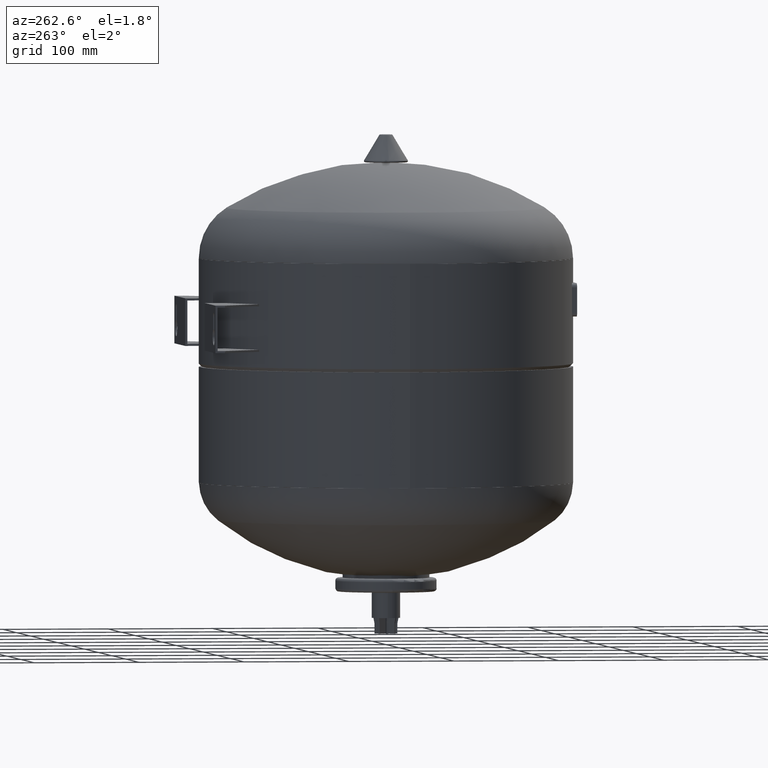
[diagram: clean part render]
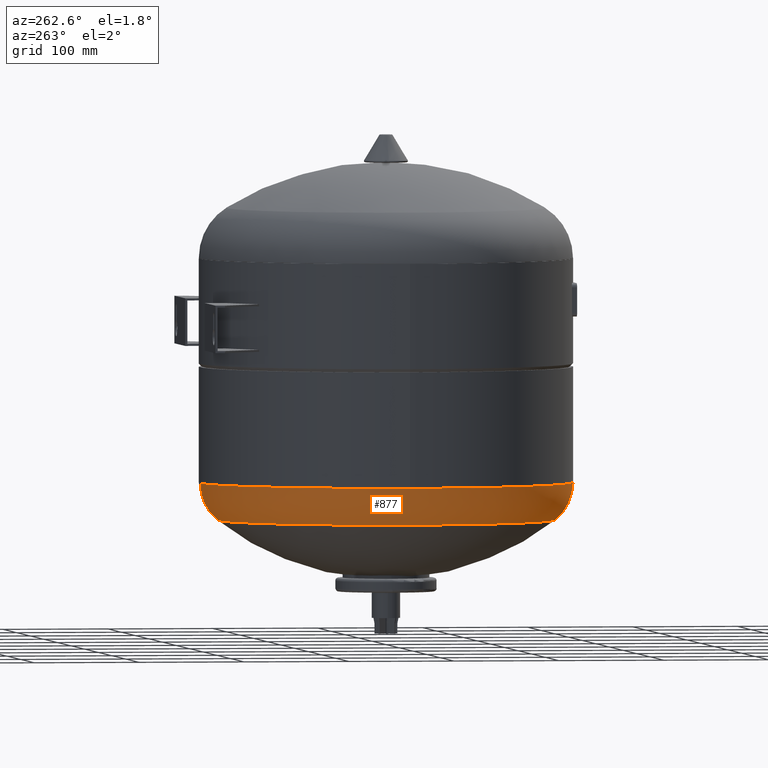
[diagram: same view with one face highlighted and labeled with its STEP entity id]
A machine part, auxiliary view. The second image highlights one B-rep face of the part: STEP entity #877.
In plain terms, the highlighted toroidal blend (fillet) surface has major radius 132 mm and minor (blend) radius 45 mm.
Its self-contained STEP definition (entity closure, byte-faithful):
#782=CARTESIAN_POINT('',(-177.00000000000003,3.078405E-017,142.83241941093965));
#783=VERTEX_POINT('',#782);
#807=CARTESIAN_POINT('',(-2.348140E-014,177.00000000000003,142.83241941093971));
#808=VERTEX_POINT('',#807);
#816=CARTESIAN_POINT('',(-3.325595E-018,3.078405E-017,142.83241941093965));
#817=DIRECTION('',(0.0,0.0,1.0));
#818=DIRECTION('',(-1.0,0.0,0.0));
#819=AXIS2_PLACEMENT_3D('',#816,#817,#818);
#820=CIRCLE('',#819,177.00000000000003);
#821=EDGE_CURVE('',#808,#783,#820,.T.);
#826=CARTESIAN_POINT('',(-1.805872E-015,3.078405E-017,142.83241941093965));
#827=DIRECTION('',(1.984475E-017,-1.836970E-016,1.0));
#828=DIRECTION('',(0.0,-1.0,0.0));
#829=AXIS2_PLACEMENT_3D('',#826,#827,#828);
#830=TOROIDAL_SURFACE('',#829,132.00000000000006,45.0);
#831=CARTESIAN_POINT('',(-1.805872E-015,-177.00000000000003,142.83241941093959));
#832=VERTEX_POINT('',#831);
#833=CARTESIAN_POINT('',(-2.506731E-015,-159.88732394366201,107.51532492029307));
#834=VERTEX_POINT('',#833);
#835=CARTESIAN_POINT('',(-1.805872E-015,-132.00000000000006,142.83241941093962));
#836=DIRECTION('',(1.0,0.0,0.0));
#837=DIRECTION('',(0.0,-1.0,0.0));
#838=AXIS2_PLACEMENT_3D('',#835,#836,#837);
#839=CIRCLE('',#838,45.0);
#840=EDGE_CURVE('',#832,#834,#839,.T.);
#841=ORIENTED_EDGE('',*,*,#840,.F.);
#842=CARTESIAN_POINT('',(-3.325595E-018,3.078405E-017,142.83241941093965));
#843=DIRECTION('',(0.0,0.0,1.0));
#844=DIRECTION('',(-1.0,0.0,0.0));
#845=AXIS2_PLACEMENT_3D('',#842,#843,#844);
#846=CIRCLE('',#845,177.00000000000003);
#847=EDGE_CURVE('',#783,#832,#846,.T.);
#848=ORIENTED_EDGE('',*,*,#847,.F.);
#849=ORIENTED_EDGE('',*,*,#821,.F.);
#850=CARTESIAN_POINT('',(-2.208663E-014,159.88732394366201,107.51532492029312));
#851=VERTEX_POINT('',#850);
#852=CARTESIAN_POINT('',(-1.797068E-014,132.00000000000006,142.83241941093968));
#853=DIRECTION('',(-1.0,0.0,0.0));
#854=DIRECTION('',(0.0,1.0,0.0));
#855=AXIS2_PLACEMENT_3D('',#852,#853,#854);
#856=CIRCLE('',#855,45.0);
#857=EDGE_CURVE('',#808,#851,#856,.T.);
#858=ORIENTED_EDGE('',*,*,#857,.T.);
#859=CARTESIAN_POINT('',(-159.88732394366201,6.518429E-015,107.5153249202931));
#860=VERTEX_POINT('',#859);
#861=CARTESIAN_POINT('',(-7.041844E-016,6.518429E-015,107.5153249202931));
#862=DIRECTION('',(0.0,0.0,1.0));
#863=DIRECTION('',(-1.0,0.0,0.0));
#864=AXIS2_PLACEMENT_3D('',#861,#862,#863);
#865=CIRCLE('',#864,159.88732394366201);
#866=EDGE_CURVE('',#851,#860,#865,.T.);
#867=ORIENTED_EDGE('',*,*,#866,.T.);
#868=CARTESIAN_POINT('',(-7.041844E-016,6.518429E-015,107.5153249202931));
#869=DIRECTION('',(0.0,0.0,1.0));
#870=DIRECTION('',(-1.0,0.0,0.0));
#871=AXIS2_PLACEMENT_3D('',#868,#869,#870);
#872=CIRCLE('',#871,159.88732394366201);
#873=EDGE_CURVE('',#860,#834,#872,.T.);
#874=ORIENTED_EDGE('',*,*,#873,.T.);
#875=EDGE_LOOP('',(#841,#848,#849,#858,#867,#874));
#876=FACE_OUTER_BOUND('',#875,.T.);
#877=ADVANCED_FACE('',(#876),#830,.T.);